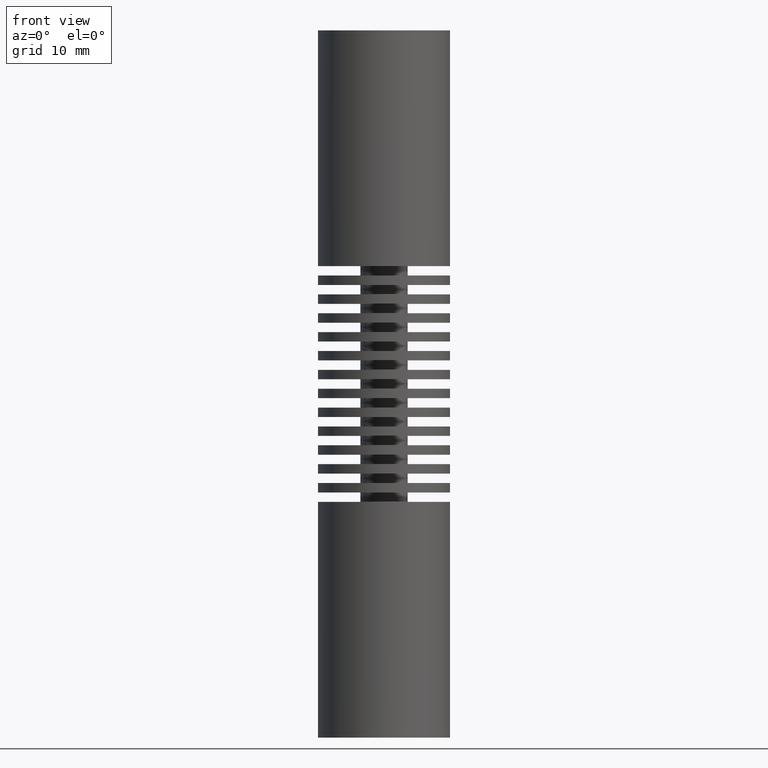
[diagram: clean part render]
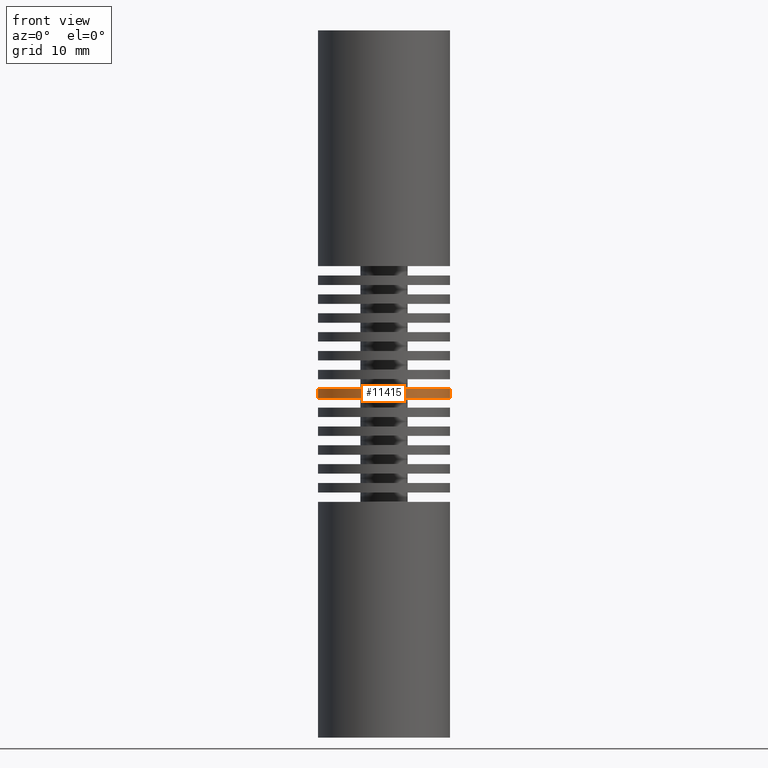
[diagram: same view with one face highlighted and labeled with its STEP entity id]
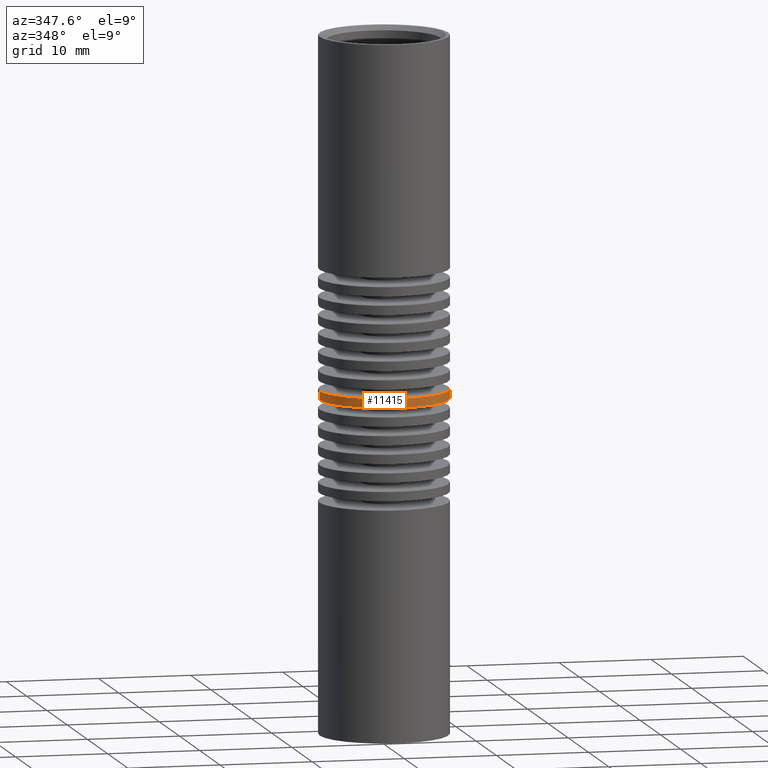
[diagram: same view with one face highlighted and labeled with its STEP entity id]
A machine part, front view. The second image highlights one B-rep face of the part: STEP entity #11415.
A second angle (auxiliary view) of the same face is appended — the face is thin or edge-on in the first view.
In plain terms, the highlighted cylindrical surface (partial cylindrical patch) has radius 7 mm, axis along (0, -0, 1).
Its self-contained STEP definition (entity closure, byte-faithful):
#644 = EDGE_CURVE ( 'NONE', #8188, #11791, #3129, .T. ) ;
#666 = ORIENTED_EDGE ( 'NONE', *, *, #644, .F. ) ;
#733 = ORIENTED_EDGE ( 'NONE', *, *, #3475, .F. ) ;
#1043 = AXIS2_PLACEMENT_3D ( 'NONE', #9877, #2061, #3099 ) ;
#1058 = CARTESIAN_POINT ( 'NONE',  ( -7.000000000000002665, 8.572527594031475162E-16, -1.500000000000002220 ) ) ;
#1517 = CARTESIAN_POINT ( 'NONE',  ( -7.000000000000002665, 8.572527594031475162E-16, -1.500000000000002220 ) ) ;
#1657 = DIRECTION ( 'NONE',  ( -1.000000000000000000, 0.000000000000000000, 2.478176394252580648E-16 ) ) ;
#2061 = DIRECTION ( 'NONE',  ( 2.478176394252581634E-16, -0.000000000000000000, 1.000000000000000000 ) ) ;
#2104 = ORIENTED_EDGE ( 'NONE', *, *, #13532, .T. ) ;
#2489 = ORIENTED_EDGE ( 'NONE', *, *, #10151, .T. ) ;
#2688 = CIRCLE ( 'NONE', #10788, 7.000000000000002665 ) ;
#3099 = DIRECTION ( 'NONE',  ( 1.000000000000000000, 0.000000000000000000, -2.478176394252580648E-16 ) ) ;
#3129 = LINE ( 'NONE', #1517, #9976 ) ;
#3475 = EDGE_CURVE ( 'NONE', #8374, #8188, #2688, .T. ) ;
#5003 = DIRECTION ( 'NONE',  ( -2.478176394252581141E-16, 0.000000000000000000, -1.000000000000000000 ) ) ;
#5917 = CIRCLE ( 'NONE', #12210, 7.000000000000002665 ) ;
#7092 = CARTESIAN_POINT ( 'NONE',  ( 7.000000000000002665, 0.000000000000000000, -1.500000000000005773 ) ) ;
#8188 = VERTEX_POINT ( 'NONE', #1058 ) ;
#8374 = VERTEX_POINT ( 'NONE', #13860 ) ;
#9532 = CARTESIAN_POINT ( 'NONE',  ( 0.000000000000000000, 0.000000000000000000, -0.5000000000000038858 ) ) ;
#9877 = CARTESIAN_POINT ( 'NONE',  ( -2.478176394252581634E-16, 0.000000000000000000, -1.500000000000003997 ) ) ;
#9945 = FACE_OUTER_BOUND ( 'NONE', #13049, .T. ) ;
#9976 = VECTOR ( 'NONE', #11799, 1000.000000000000000 ) ;
#10151 = EDGE_CURVE ( 'NONE', #8374, #11861, #13490, .T. ) ;
#10468 = DIRECTION ( 'NONE',  ( -2.478176394252581141E-16, 0.000000000000000000, -1.000000000000000000 ) ) ;
#10788 = AXIS2_PLACEMENT_3D ( 'NONE', #11698, #5003, #1657 ) ;
#10809 = DIRECTION ( 'NONE',  ( 2.478176394252581634E-16, -0.000000000000000000, 1.000000000000000000 ) ) ;
#10839 = CARTESIAN_POINT ( 'NONE',  ( 7.000000000000002665, 0.000000000000000000, -0.5000000000000056621 ) ) ;
#11415 = ADVANCED_FACE ( 'NONE', ( #9945 ), #11867, .T. ) ;
#11698 = CARTESIAN_POINT ( 'NONE',  ( -2.478176394252581634E-16, 0.000000000000000000, -1.500000000000003997 ) ) ;
#11791 = VERTEX_POINT ( 'NONE', #13993 ) ;
#11799 = DIRECTION ( 'NONE',  ( 2.478176394252581634E-16, -0.000000000000000000, 1.000000000000000000 ) ) ;
#11861 = VERTEX_POINT ( 'NONE', #10839 ) ;
#11867 = CYLINDRICAL_SURFACE ( 'NONE', #1043, 7.000000000000002665 ) ;
#12210 = AXIS2_PLACEMENT_3D ( 'NONE', #9532, #10468, #13958 ) ;
#12618 = VECTOR ( 'NONE', #10809, 1000.000000000000000 ) ;
#13049 = EDGE_LOOP ( 'NONE', ( #666, #733, #2489, #2104 ) ) ;
#13490 = LINE ( 'NONE', #7092, #12618 ) ;
#13532 = EDGE_CURVE ( 'NONE', #11861, #11791, #5917, .T. ) ;
#13860 = CARTESIAN_POINT ( 'NONE',  ( 7.000000000000002665, 0.000000000000000000, -1.500000000000005773 ) ) ;
#13958 = DIRECTION ( 'NONE',  ( -1.000000000000000000, 0.000000000000000000, 2.478176394252580648E-16 ) ) ;
#13993 = CARTESIAN_POINT ( 'NONE',  ( -7.000000000000002665, 8.572527594031475162E-16, -0.5000000000000022204 ) ) ;